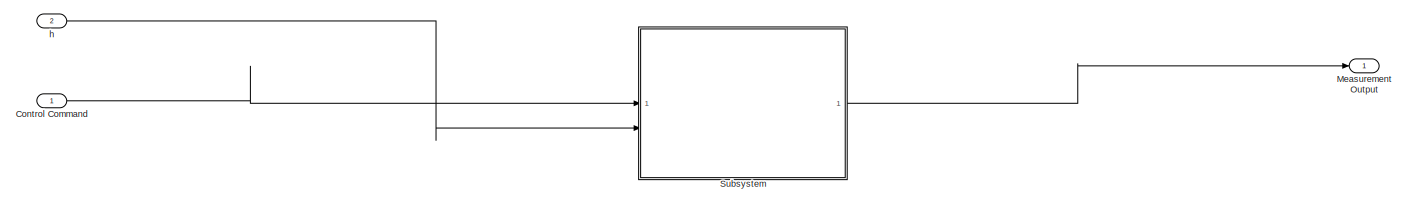
[diagram: root canvas - part 1/2, most of the canvas]
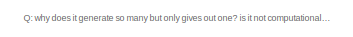
[diagram: root canvas - part 2/2, middle left region]
MODEL slx_da53d16b4b22
KIND model
CONFIG AbsTol = auto
CONFIG EnableMultiTasking = off
CONFIG FixedStep = 0.03
CONFIG MaxStep = auto
CONFIG MinStep = auto
CONFIG RelTol = 1e-3
CONFIG SampleTimeConstraint = Unconstrained
CONFIG SolverName = VariableStepAuto
CONFIG StartTime = 0.0
CONFIG StopTime = 10.0
WORKSPACE source: mxarray member
WORKSPACE NoiseCov = [1 0 0 0 0 0 0 1 0 0 0 0 ... (36 elements, 6x6)]
WORKSPACE Orbit_Incl = 51.6
BLOCK [Inport] Control Command
  IconDisplay = Signal name
BLOCK [Outport] Measurement Output
BLOCK [SubSystem] Subsystem
  ReferencedSubsystem = Measurement_sim
BLOCK [Inport] h
  Port = 2
ANNOTATION (root): Q: why does it generate so many but only gives out one? is it not computationally heavy ?
LINE Control Command:1 -> Subsystem:1
LINE Subsystem:1 -> Measurement Output:1
LINE h:1 -> Subsystem:2
